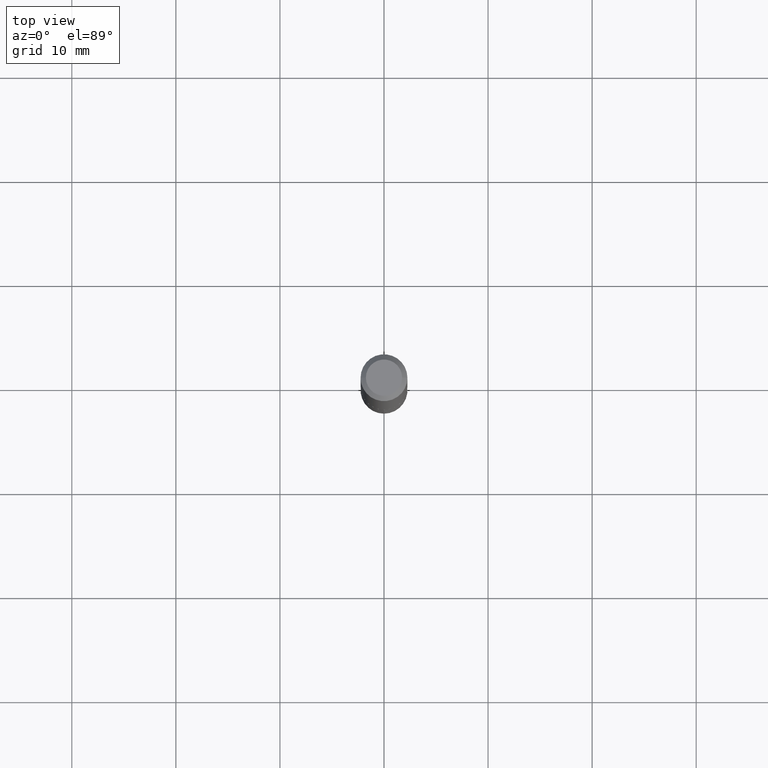
[diagram: clean part render]
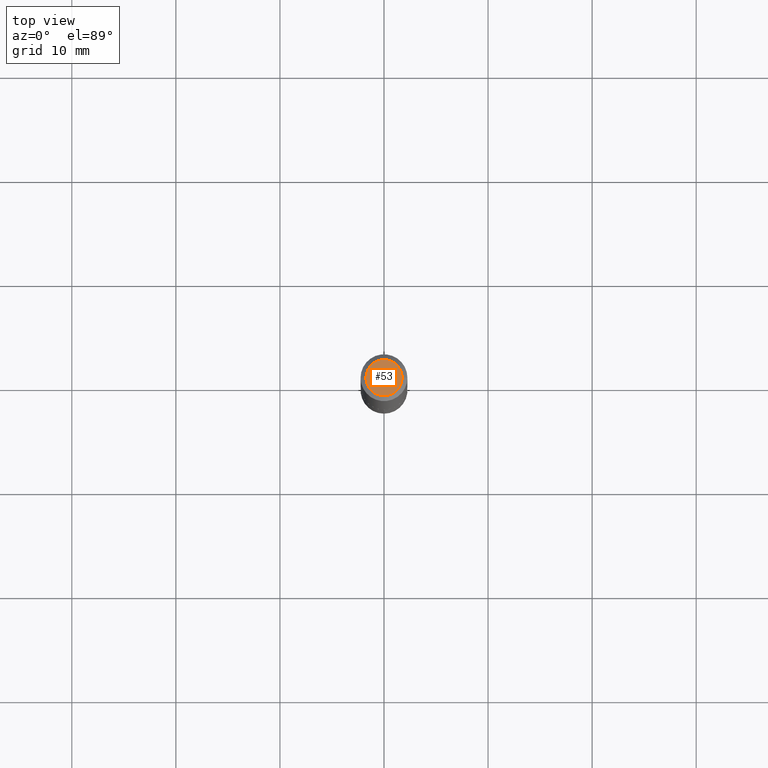
[diagram: same view with one face highlighted and labeled with its STEP entity id]
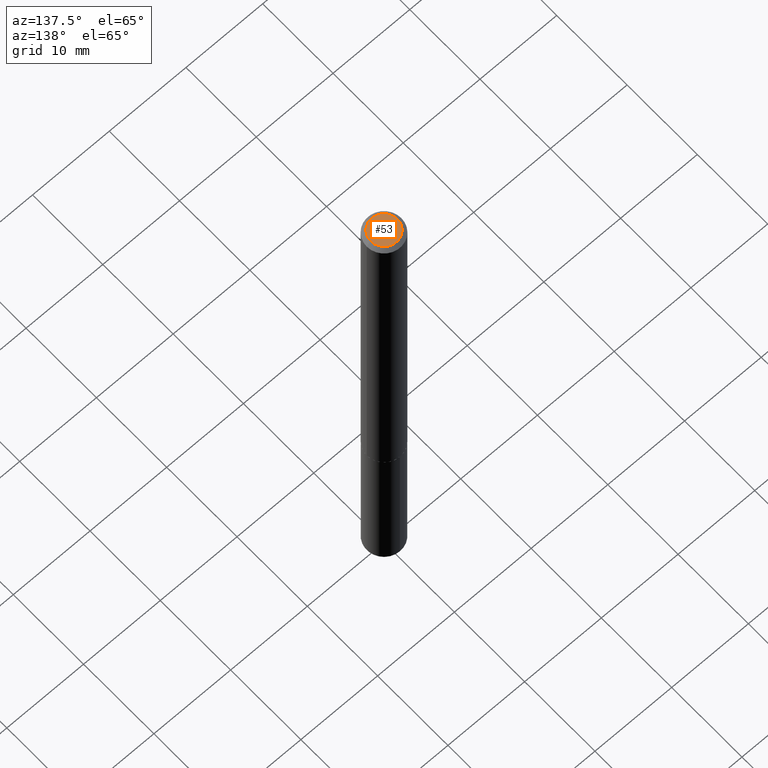
[diagram: same view with one face highlighted and labeled with its STEP entity id]
A machine part, top view. The second image highlights one B-rep face of the part: STEP entity #53.
A second angle (auxiliary view) of the same face is appended — the face is thin or edge-on in the first view.
In plain terms, the highlighted planar face has unit normal (0, -0, -1).
Its self-contained STEP definition (entity closure, byte-faithful):
#46 = CARTESIAN_POINT ( 'NONE',  ( 0.06859999999999999432, -5.741499560132741618E-16, -1.206277097156459940E-18 ) ) ;
#49 = CARTESIAN_POINT ( 'NONE',  ( -0.06859999999999999432, 5.139460530777088931E-16, -1.206277097163614192E-18 ) ) ;
#53 = ADVANCED_FACE ( 'NONE', ( #90 ), #216, .F. ) ;
#55 = AXIS2_PLACEMENT_3D ( 'NONE', #176, #205, #269 ) ;
#64 = DIRECTION ( 'NONE',  ( 2.438088387897960049E-29, -3.491481338843145188E-15, -1.000000000000000000 ) ) ;
#83 = AXIS2_PLACEMENT_3D ( 'NONE', #373, #200, #323 ) ;
#89 = VERTEX_POINT ( 'NONE', #46 ) ;
#90 = FACE_OUTER_BOUND ( 'NONE', #161, .T. ) ;
#105 = CIRCLE ( 'NONE', #55, 0.06859999999999999432 ) ;
#146 = CIRCLE ( 'NONE', #83, 0.06859999999999999432 ) ;
#161 = EDGE_LOOP ( 'NONE', ( #253, #388 ) ) ;
#176 = CARTESIAN_POINT ( 'NONE',  ( 2.949913012720684988E-47, -4.211693974208516862E-33, -1.206277097160142318E-18 ) ) ;
#188 = EDGE_CURVE ( 'NONE', #348, #89, #146, .T. ) ;
#200 = DIRECTION ( 'NONE',  ( -2.445468806185136597E-29, 3.491481338843145583E-15, 1.000000000000000000 ) ) ;
#205 = DIRECTION ( 'NONE',  ( -2.445468806185136597E-29, 3.491481338843145583E-15, 1.000000000000000000 ) ) ;
#216 = PLANE ( 'NONE',  #270 ) ;
#253 = ORIENTED_EDGE ( 'NONE', *, *, #188, .T. ) ;
#269 = DIRECTION ( 'NONE',  ( 1.000000000000000000, -6.982962677686267499E-15, 4.876127912746388045E-29 ) ) ;
#270 = AXIS2_PLACEMENT_3D ( 'NONE', #343, #64, #303 ) ;
#298 = EDGE_CURVE ( 'NONE', #89, #348, #105, .T. ) ;
#303 = DIRECTION ( 'NONE',  ( -1.000000000000000000, 6.982962677686265922E-15, -4.876176775795935793E-29 ) ) ;
#323 = DIRECTION ( 'NONE',  ( 1.000000000000000000, -6.982962677686267499E-15, 4.876127912746388045E-29 ) ) ;
#343 = CARTESIAN_POINT ( 'NONE',  ( 1.474956506360342494E-47, -2.105846987104258431E-33, -6.031385485800711590E-19 ) ) ;
#348 = VERTEX_POINT ( 'NONE', #49 ) ;
#373 = CARTESIAN_POINT ( 'NONE',  ( 2.949913012720684988E-47, -4.211693974208516862E-33, -1.206277097160142318E-18 ) ) ;
#388 = ORIENTED_EDGE ( 'NONE', *, *, #298, .T. ) ;